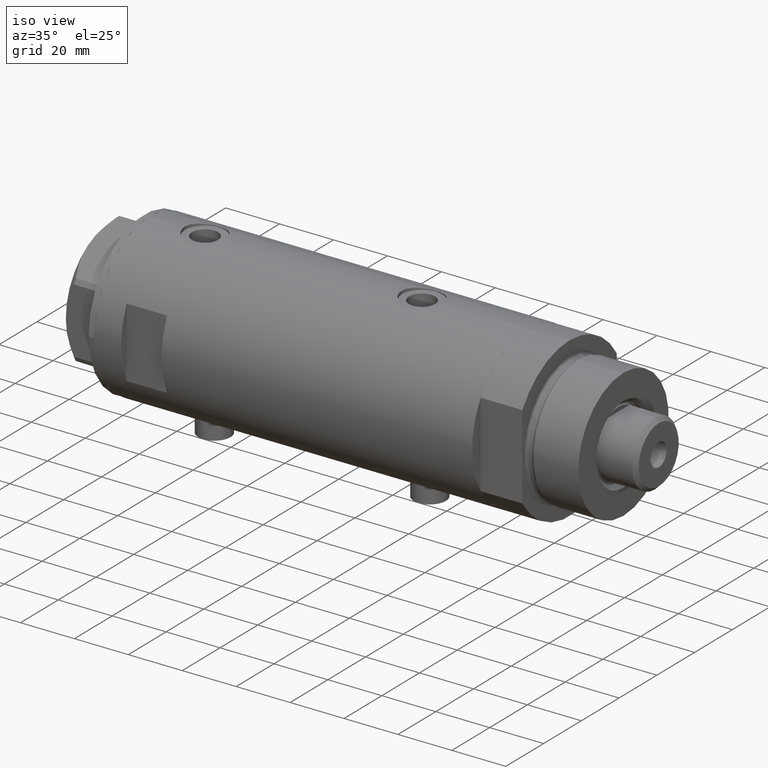
[diagram: clean part render]
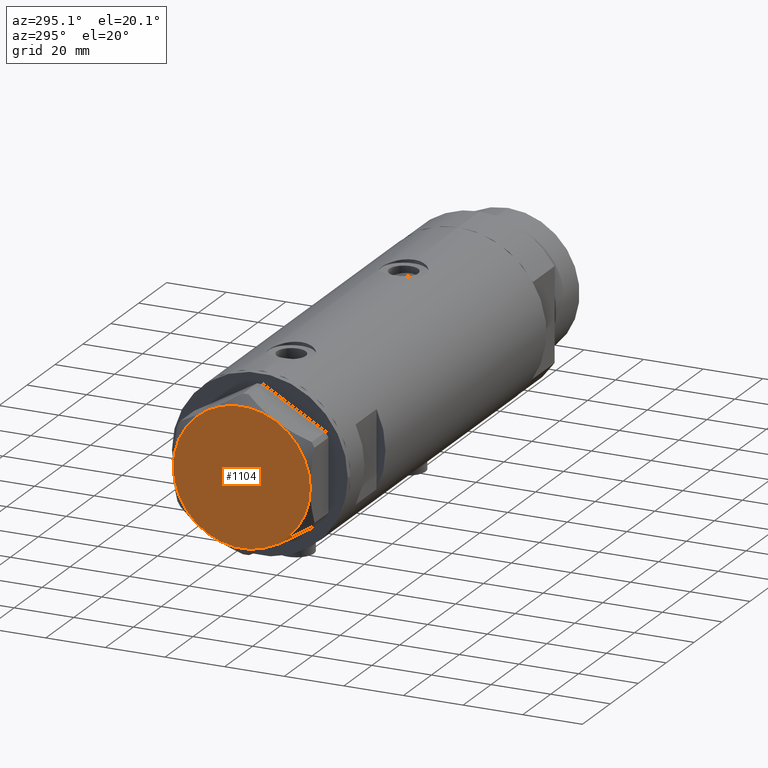
[diagram: tour spotlight — one face highlighted and labeled with its STEP entity id]
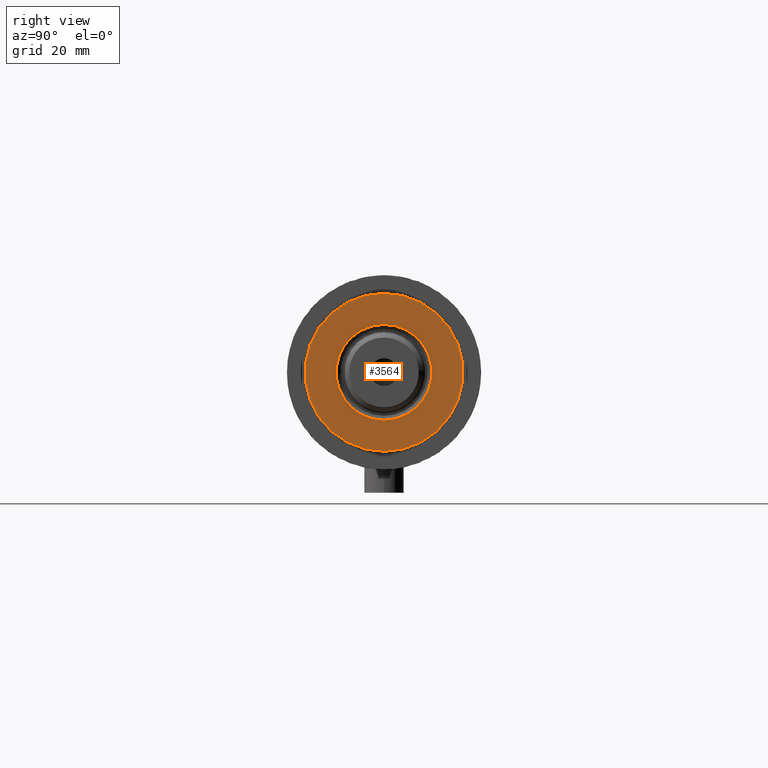
[diagram: tour spotlight — one face highlighted and labeled with its STEP entity id]
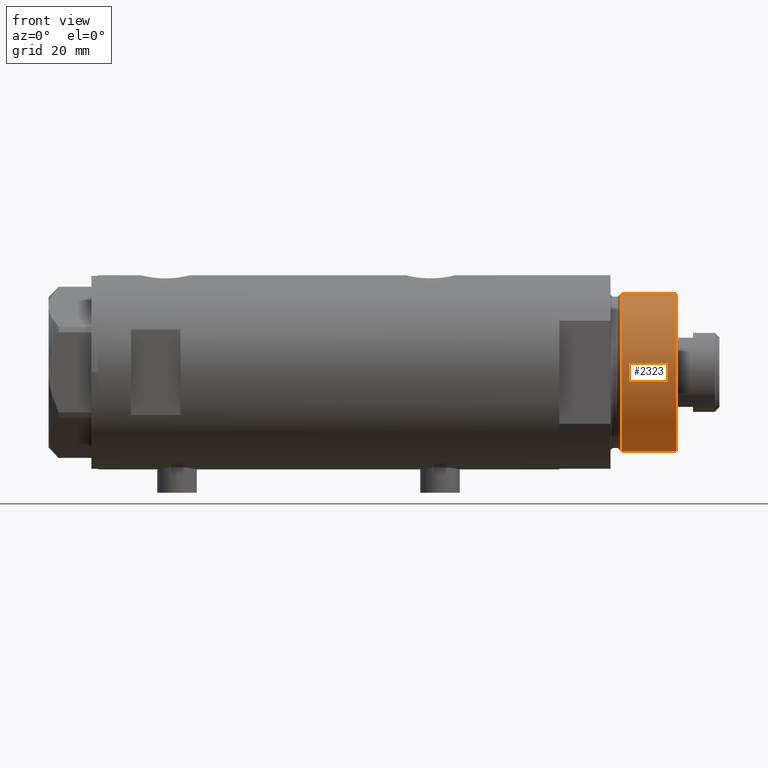
[diagram: tour spotlight — one face highlighted and labeled with its STEP entity id]
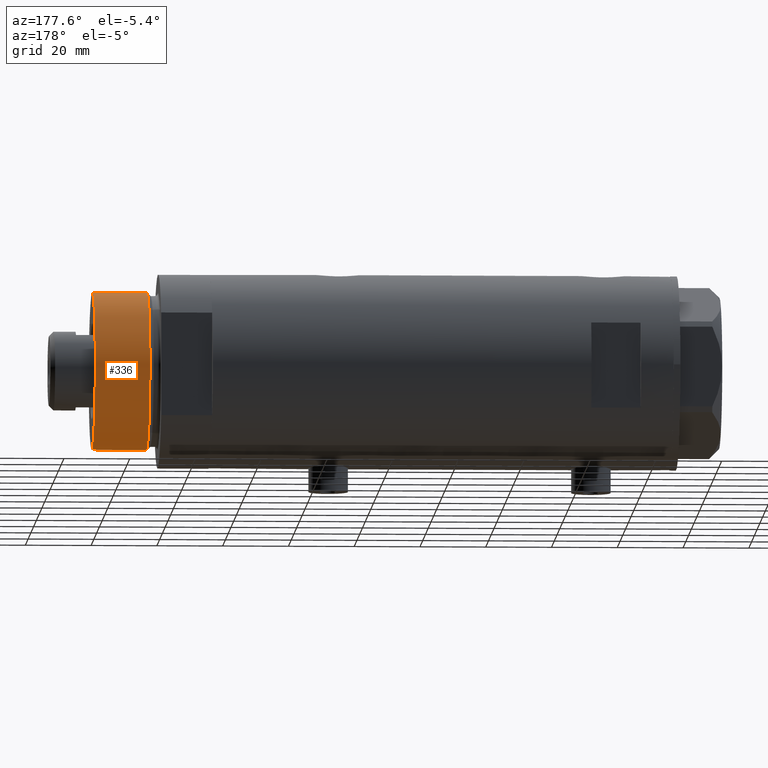
[diagram: tour spotlight — one face highlighted and labeled with its STEP entity id]
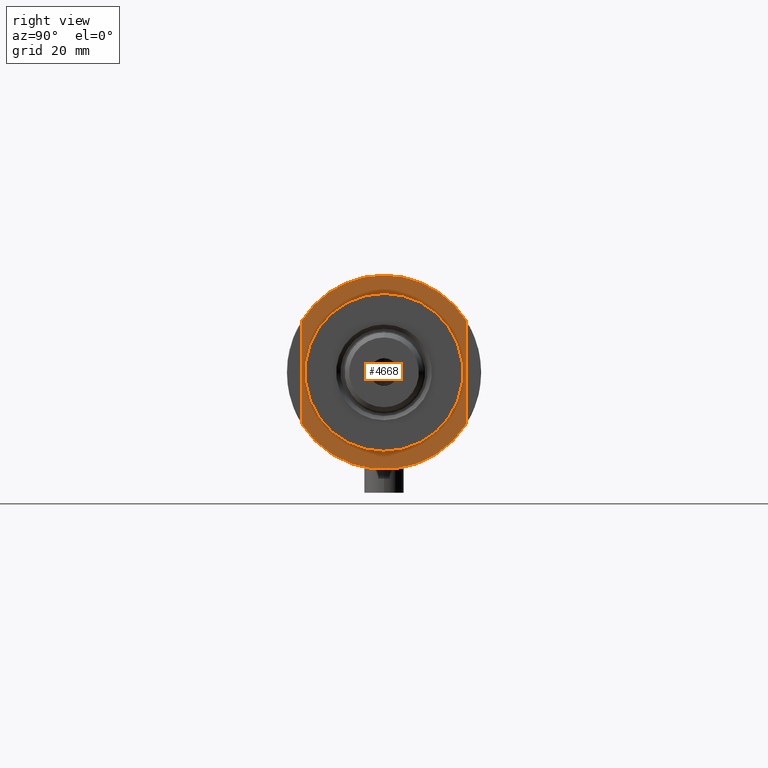
[diagram: tour spotlight — one face highlighted and labeled with its STEP entity id]
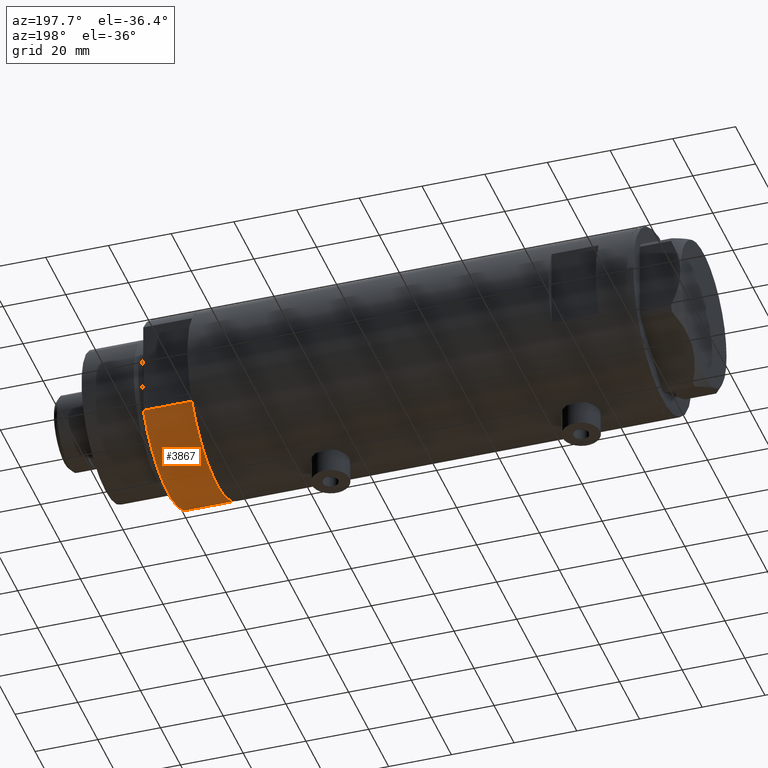
[diagram: tour spotlight — one face highlighted and labeled with its STEP entity id]
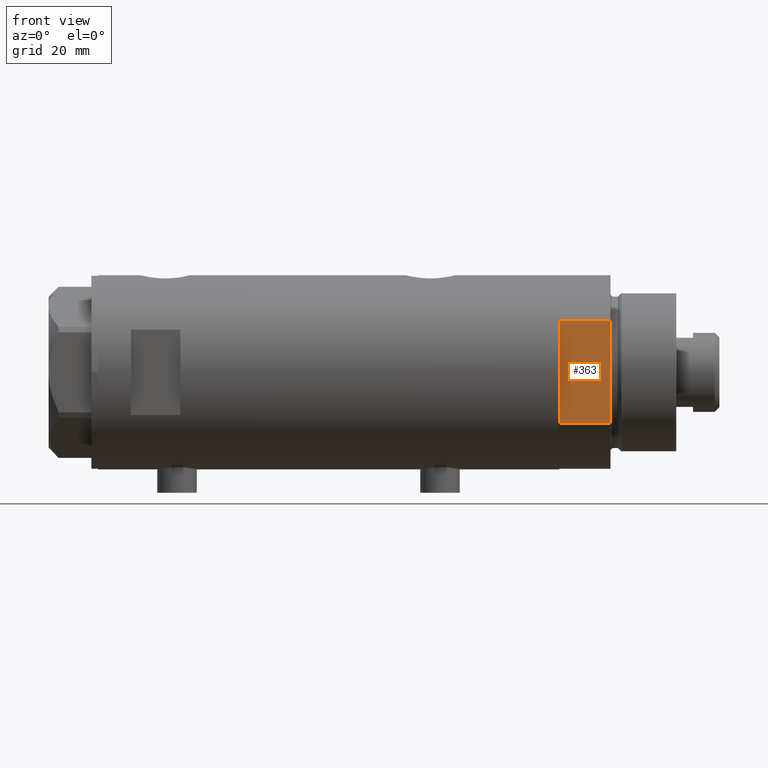
[diagram: tour spotlight — one face highlighted and labeled with its STEP entity id]
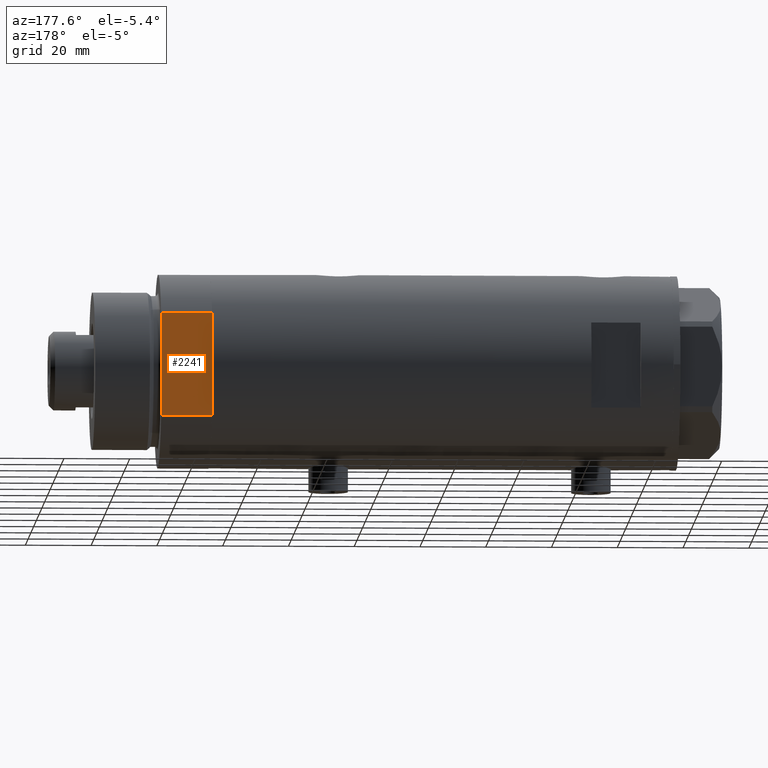
[diagram: tour spotlight — one face highlighted and labeled with its STEP entity id]
A machine part: a face-by-face anatomy tour. The part has 126 B-rep faces; the first image is the clean iso view, then the 8 largest visible faces are spotlighted one at a time (largest first), each with its STEP entity span.

Face 1 — auxiliary view, entity #1104. In plain terms, the highlighted planar face has unit normal (-1, -0, 0).
Definition (entity closure, byte-faithful):
#149 = DIRECTION ( 'NONE',  ( 1.000000000000000000, 0.000000000000000000, 0.000000000000000000 ) ) ;
#168 = CARTESIAN_POINT ( 'NONE',  ( -23.00000000000004619, -8.112498833180673323E-14, 13.00000000000000000 ) ) ;
#274 = AXIS2_PLACEMENT_3D ( 'NONE', #1689, #3508, #2084 ) ;
#452 = EDGE_LOOP ( 'NONE', ( #2864, #4184, #1001, #4405, #4159, #968 ) ) ;
#621 = CARTESIAN_POINT ( 'NONE',  ( -11.50000000000004441, 19.91858428704211548, 13.00000000000000000 ) ) ;
#648 = CARTESIAN_POINT ( 'NONE',  ( 0.000000000000000000, 0.000000000000000000, 13.00000000000000000 ) ) ;
#650 = AXIS2_PLACEMENT_3D ( 'NONE', #3964, #3939, #1782 ) ;
#659 = AXIS2_PLACEMENT_3D ( 'NONE', #3839, #3937, #2103 ) ;
#968 = ORIENTED_EDGE ( 'NONE', *, *, #3416, .T. ) ;
#996 = EDGE_CURVE ( 'NONE', #4281, #1590, #3108, .T. ) ;
#1001 = ORIENTED_EDGE ( 'NONE', *, *, #4637, .T. ) ;
#1104 = ADVANCED_FACE ( 'NONE', ( #1424 ), #4443, .T. ) ;
#1177 = CARTESIAN_POINT ( 'NONE',  ( -11.49999999999990585, -19.91858428704219364, 13.00000000000000000 ) ) ;
#1295 = CARTESIAN_POINT ( 'NONE',  ( 22.99999999999995026, 2.373657066004705010E-13, 13.00000000000000000 ) ) ;
#1327 = CIRCLE ( 'NONE', #2720, 23.00000000000004619 ) ;
#1354 = VERTEX_POINT ( 'NONE', #1295 ) ;
#1424 = FACE_OUTER_BOUND ( 'NONE', #452, .T. ) ;
#1590 = VERTEX_POINT ( 'NONE', #168 ) ;
#1666 = CARTESIAN_POINT ( 'NONE',  ( 0.000000000000000000, 0.000000000000000000, 13.00000000000000000 ) ) ;
#1689 = CARTESIAN_POINT ( 'NONE',  ( 0.000000000000000000, 0.000000000000000000, 13.00000000000000000 ) ) ;
#1782 = DIRECTION ( 'NONE',  ( 1.000000000000000000, 0.000000000000000000, 0.000000000000000000 ) ) ;
#2006 = EDGE_CURVE ( 'NONE', #1354, #4049, #4571, .T. ) ;
#2084 = DIRECTION ( 'NONE',  ( 1.000000000000000000, 0.000000000000000000, 0.000000000000000000 ) ) ;
#2103 = DIRECTION ( 'NONE',  ( 1.000000000000000000, 0.000000000000000000, 0.000000000000000000 ) ) ;
#2186 = DIRECTION ( 'NONE',  ( 1.000000000000000000, 0.000000000000000000, -0.000000000000000000 ) ) ;
#2259 = EDGE_CURVE ( 'NONE', #1590, #3776, #1327, .T. ) ;
#2613 = DIRECTION ( 'NONE',  ( 0.000000000000000000, 0.000000000000000000, 1.000000000000000000 ) ) ;
#2720 = AXIS2_PLACEMENT_3D ( 'NONE', #1666, #4137, #2820 ) ;
#2820 = DIRECTION ( 'NONE',  ( 1.000000000000000000, 0.000000000000000000, 0.000000000000000000 ) ) ;
#2864 = ORIENTED_EDGE ( 'NONE', *, *, #4280, .T. ) ;
#2892 = CARTESIAN_POINT ( 'NONE',  ( 0.000000000000000000, 0.000000000000000000, 13.00000000000000000 ) ) ;
#2915 = CIRCLE ( 'NONE', #659, 23.00000000000004619 ) ;
#3108 = CIRCLE ( 'NONE', #3796, 23.00000000000004619 ) ;
#3233 = DIRECTION ( 'NONE',  ( 0.000000000000000000, 0.000000000000000000, 1.000000000000000000 ) ) ;
#3304 = CIRCLE ( 'NONE', #274, 23.00000000000004619 ) ;
#3414 = AXIS2_PLACEMENT_3D ( 'NONE', #2892, #2613, #2186 ) ;
#3416 = EDGE_CURVE ( 'NONE', #3776, #3501, #4126, .T. ) ;
#3501 = VERTEX_POINT ( 'NONE', #3581 ) ;
#3508 = DIRECTION ( 'NONE',  ( 0.000000000000000000, 0.000000000000000000, 1.000000000000000000 ) ) ;
#3581 = CARTESIAN_POINT ( 'NONE',  ( 11.50000000000018296, -19.91858428704203732, 13.00000000000000000 ) ) ;
#3776 = VERTEX_POINT ( 'NONE', #1177 ) ;
#3796 = AXIS2_PLACEMENT_3D ( 'NONE', #648, #3233, #4672 ) ;
#3839 = CARTESIAN_POINT ( 'NONE',  ( 0.000000000000000000, 0.000000000000000000, 13.00000000000000000 ) ) ;
#3879 = AXIS2_PLACEMENT_3D ( 'NONE', #4580, #4194, #149 ) ;
#3937 = DIRECTION ( 'NONE',  ( 0.000000000000000000, 0.000000000000000000, 1.000000000000000000 ) ) ;
#3939 = DIRECTION ( 'NONE',  ( 0.000000000000000000, 0.000000000000000000, 1.000000000000000000 ) ) ;
#3964 = CARTESIAN_POINT ( 'NONE',  ( 0.000000000000000000, 0.000000000000000000, 13.00000000000000000 ) ) ;
#4049 = VERTEX_POINT ( 'NONE', #4566 ) ;
#4126 = CIRCLE ( 'NONE', #650, 23.00000000000004619 ) ;
#4137 = DIRECTION ( 'NONE',  ( 0.000000000000000000, 0.000000000000000000, 1.000000000000000000 ) ) ;
#4159 = ORIENTED_EDGE ( 'NONE', *, *, #2259, .T. ) ;
#4184 = ORIENTED_EDGE ( 'NONE', *, *, #2006, .T. ) ;
#4194 = DIRECTION ( 'NONE',  ( 0.000000000000000000, 0.000000000000000000, 1.000000000000000000 ) ) ;
#4280 = EDGE_CURVE ( 'NONE', #3501, #1354, #3304, .T. ) ;
#4281 = VERTEX_POINT ( 'NONE', #621 ) ;
#4405 = ORIENTED_EDGE ( 'NONE', *, *, #996, .T. ) ;
#4443 = PLANE ( 'NONE',  #3414 ) ;
#4566 = CARTESIAN_POINT ( 'NONE',  ( 11.49999999999990408, 19.91858428704219364, 13.00000000000000000 ) ) ;
#4571 = CIRCLE ( 'NONE', #3879, 23.00000000000004619 ) ;
#4580 = CARTESIAN_POINT ( 'NONE',  ( 0.000000000000000000, 0.000000000000000000, 13.00000000000000000 ) ) ;
#4637 = EDGE_CURVE ( 'NONE', #4049, #4281, #2915, .T. ) ;
#4672 = DIRECTION ( 'NONE',  ( 1.000000000000000000, 0.000000000000000000, 0.000000000000000000 ) ) ;

Face 2 — right view, entity #3564. In plain terms, the highlighted planar face has unit normal (1, 0, -0).
Definition (entity closure, byte-faithful):
#157 = EDGE_CURVE ( 'NONE', #2416, #3093, #2091, .T. ) ;
#166 = CARTESIAN_POINT ( 'NONE',  ( 0.000000000000000000, 0.000000000000000000, 35.50000000000000711 ) ) ;
#276 = PLANE ( 'NONE',  #4513 ) ;
#398 = DIRECTION ( 'NONE',  ( 1.000000000000000000, 0.000000000000000000, 0.000000000000000000 ) ) ;
#446 = CARTESIAN_POINT ( 'NONE',  ( 0.000000000000000000, 0.000000000000000000, 35.50000000000000711 ) ) ;
#683 = CARTESIAN_POINT ( 'NONE',  ( -14.54999999999999361, 1.781861092759398299E-15, 35.50000000000000711 ) ) ;
#796 = CARTESIAN_POINT ( 'NONE',  ( 24.00000000000000355, 2.939152317953648289E-15, 35.50000000000000711 ) ) ;
#831 = DIRECTION ( 'NONE',  ( -0.000000000000000000, -0.000000000000000000, -1.000000000000000000 ) ) ;
#879 = AXIS2_PLACEMENT_3D ( 'NONE', #2930, #1418, #3651 ) ;
#1060 = CARTESIAN_POINT ( 'NONE',  ( 14.54999999999999361, 0.000000000000000000, 35.50000000000000711 ) ) ;
#1389 = CARTESIAN_POINT ( 'NONE',  ( 0.000000000000000000, 0.000000000000000000, 35.50000000000000711 ) ) ;
#1416 = DIRECTION ( 'NONE',  ( 1.000000000000000000, 0.000000000000000000, -0.000000000000000000 ) ) ;
#1418 = DIRECTION ( 'NONE',  ( 0.000000000000000000, 0.000000000000000000, 1.000000000000000000 ) ) ;
#1421 = ORIENTED_EDGE ( 'NONE', *, *, #157, .T. ) ;
#1743 = AXIS2_PLACEMENT_3D ( 'NONE', #2448, #3207, #2424 ) ;
#1763 = ORIENTED_EDGE ( 'NONE', *, *, #2496, .T. ) ;
#2091 = CIRCLE ( 'NONE', #2946, 14.54999999999999361 ) ;
#2161 = AXIS2_PLACEMENT_3D ( 'NONE', #446, #831, #398 ) ;
#2416 = VERTEX_POINT ( 'NONE', #1060 ) ;
#2424 = DIRECTION ( 'NONE',  ( 1.000000000000000000, 0.000000000000000000, 0.000000000000000000 ) ) ;
#2429 = DIRECTION ( 'NONE',  ( -0.000000000000000000, -0.000000000000000000, -1.000000000000000000 ) ) ;
#2448 = CARTESIAN_POINT ( 'NONE',  ( 0.000000000000000000, 0.000000000000000000, 35.50000000000000711 ) ) ;
#2496 = EDGE_CURVE ( 'NONE', #3093, #2416, #2936, .T. ) ;
#2540 = FACE_BOUND ( 'NONE', #3015, .T. ) ;
#2832 = CARTESIAN_POINT ( 'NONE',  ( -24.00000000000000355, 0.000000000000000000, 35.50000000000000711 ) ) ;
#2857 = FACE_OUTER_BOUND ( 'NONE', #4207, .T. ) ;
#2924 = ORIENTED_EDGE ( 'NONE', *, *, #4185, .T. ) ;
#2930 = CARTESIAN_POINT ( 'NONE',  ( 0.000000000000000000, 0.000000000000000000, 35.50000000000000711 ) ) ;
#2936 = CIRCLE ( 'NONE', #2161, 14.54999999999999361 ) ;
#2946 = AXIS2_PLACEMENT_3D ( 'NONE', #166, #2429, #3490 ) ;
#2948 = DIRECTION ( 'NONE',  ( 0.000000000000000000, 0.000000000000000000, 1.000000000000000000 ) ) ;
#2985 = CIRCLE ( 'NONE', #879, 24.00000000000000355 ) ;
#2989 = CIRCLE ( 'NONE', #1743, 24.00000000000000355 ) ;
#3015 = EDGE_LOOP ( 'NONE', ( #1421, #1763 ) ) ;
#3061 = ORIENTED_EDGE ( 'NONE', *, *, #3483, .T. ) ;
#3093 = VERTEX_POINT ( 'NONE', #683 ) ;
#3207 = DIRECTION ( 'NONE',  ( 0.000000000000000000, 0.000000000000000000, 1.000000000000000000 ) ) ;
#3291 = VERTEX_POINT ( 'NONE', #796 ) ;
#3483 = EDGE_CURVE ( 'NONE', #3291, #4542, #2985, .T. ) ;
#3490 = DIRECTION ( 'NONE',  ( 1.000000000000000000, 0.000000000000000000, 0.000000000000000000 ) ) ;
#3564 = ADVANCED_FACE ( 'NONE', ( #2540, #2857 ), #276, .T. ) ;
#3651 = DIRECTION ( 'NONE',  ( 1.000000000000000000, 0.000000000000000000, 0.000000000000000000 ) ) ;
#4185 = EDGE_CURVE ( 'NONE', #4542, #3291, #2989, .T. ) ;
#4207 = EDGE_LOOP ( 'NONE', ( #2924, #3061 ) ) ;
#4513 = AXIS2_PLACEMENT_3D ( 'NONE', #1389, #2948, #1416 ) ;
#4542 = VERTEX_POINT ( 'NONE', #2832 ) ;

Face 3 — front view, entity #2323. In plain terms, the highlighted cylindrical surface (partial cylindrical patch) has radius 24 mm, axis along (-1, -0, 0).
Definition (entity closure, byte-faithful):
#409 = CARTESIAN_POINT ( 'NONE',  ( 0.000000000000000000, 0.000000000000000000, 18.87384048104054202 ) ) ;
#423 = CARTESIAN_POINT ( 'NONE',  ( 24.00000000000000355, 2.939152317953648289E-15, 18.87384048104054202 ) ) ;
#670 = EDGE_CURVE ( 'NONE', #3291, #2500, #3202, .T. ) ;
#753 = DIRECTION ( 'NONE',  ( -0.000000000000000000, -0.000000000000000000, 1.000000000000000000 ) ) ;
#773 = VERTEX_POINT ( 'NONE', #3381 ) ;
#796 = CARTESIAN_POINT ( 'NONE',  ( 24.00000000000000355, 2.939152317953648289E-15, 35.50000000000000711 ) ) ;
#828 = ORIENTED_EDGE ( 'NONE', *, *, #3252, .T. ) ;
#954 = DIRECTION ( 'NONE',  ( -0.000000000000000000, -0.000000000000000000, -1.000000000000000000 ) ) ;
#1034 = ORIENTED_EDGE ( 'NONE', *, *, #670, .F. ) ;
#1474 = DIRECTION ( 'NONE',  ( -1.000000000000000000, 0.000000000000000000, 0.000000000000000000 ) ) ;
#1743 = AXIS2_PLACEMENT_3D ( 'NONE', #2448, #3207, #2424 ) ;
#1918 = LINE ( 'NONE', #4118, #2760 ) ;
#2050 = EDGE_LOOP ( 'NONE', ( #1034, #4738, #2234, #828 ) ) ;
#2234 = ORIENTED_EDGE ( 'NONE', *, *, #4782, .T. ) ;
#2249 = VECTOR ( 'NONE', #954, 1000.000000000000000 ) ;
#2323 = ADVANCED_FACE ( 'NONE', ( #2570 ), #2960, .T. ) ;
#2424 = DIRECTION ( 'NONE',  ( 1.000000000000000000, 0.000000000000000000, 0.000000000000000000 ) ) ;
#2448 = CARTESIAN_POINT ( 'NONE',  ( 0.000000000000000000, 0.000000000000000000, 35.50000000000000711 ) ) ;
#2500 = VERTEX_POINT ( 'NONE', #423 ) ;
#2549 = DIRECTION ( 'NONE',  ( -0.000000000000000000, -0.000000000000000000, -1.000000000000000000 ) ) ;
#2570 = FACE_OUTER_BOUND ( 'NONE', #2050, .T. ) ;
#2760 = VECTOR ( 'NONE', #3043, 1000.000000000000000 ) ;
#2832 = CARTESIAN_POINT ( 'NONE',  ( -24.00000000000000355, 0.000000000000000000, 35.50000000000000711 ) ) ;
#2960 = CYLINDRICAL_SURFACE ( 'NONE', #4654, 24.00000000000000355 ) ;
#2989 = CIRCLE ( 'NONE', #1743, 24.00000000000000355 ) ;
#3043 = DIRECTION ( 'NONE',  ( -0.000000000000000000, -0.000000000000000000, -1.000000000000000000 ) ) ;
#3202 = LINE ( 'NONE', #4664, #2249 ) ;
#3207 = DIRECTION ( 'NONE',  ( 0.000000000000000000, 0.000000000000000000, 1.000000000000000000 ) ) ;
#3252 = EDGE_CURVE ( 'NONE', #773, #2500, #4437, .T. ) ;
#3291 = VERTEX_POINT ( 'NONE', #796 ) ;
#3381 = CARTESIAN_POINT ( 'NONE',  ( -24.00000000000000355, 0.000000000000000000, 18.87384048104054202 ) ) ;
#3677 = CARTESIAN_POINT ( 'NONE',  ( 0.000000000000000000, 0.000000000000000000, 35.50000000000000711 ) ) ;
#4118 = CARTESIAN_POINT ( 'NONE',  ( -24.00000000000000355, 0.000000000000000000, 35.50000000000000711 ) ) ;
#4140 = DIRECTION ( 'NONE',  ( 1.000000000000000000, 0.000000000000000000, 0.000000000000000000 ) ) ;
#4185 = EDGE_CURVE ( 'NONE', #4542, #3291, #2989, .T. ) ;
#4288 = AXIS2_PLACEMENT_3D ( 'NONE', #409, #753, #4140 ) ;
#4437 = CIRCLE ( 'NONE', #4288, 24.00000000000000355 ) ;
#4542 = VERTEX_POINT ( 'NONE', #2832 ) ;
#4654 = AXIS2_PLACEMENT_3D ( 'NONE', #3677, #2549, #1474 ) ;
#4664 = CARTESIAN_POINT ( 'NONE',  ( 24.00000000000000355, 2.939152317953648289E-15, 35.50000000000000711 ) ) ;
#4738 = ORIENTED_EDGE ( 'NONE', *, *, #4185, .F. ) ;
#4782 = EDGE_CURVE ( 'NONE', #4542, #773, #1918, .T. ) ;

Face 4 — auxiliary view, entity #336. In plain terms, the highlighted cylindrical surface (partial cylindrical patch) has radius 24 mm, axis along (-1, -0, 0).
Definition (entity closure, byte-faithful):
#336 = ADVANCED_FACE ( 'NONE', ( #1017 ), #2505, .T. ) ;
#381 = CIRCLE ( 'NONE', #4406, 24.00000000000000355 ) ;
#423 = CARTESIAN_POINT ( 'NONE',  ( 24.00000000000000355, 2.939152317953648289E-15, 18.87384048104054202 ) ) ;
#649 = DIRECTION ( 'NONE',  ( -0.000000000000000000, -0.000000000000000000, -1.000000000000000000 ) ) ;
#670 = EDGE_CURVE ( 'NONE', #3291, #2500, #3202, .T. ) ;
#682 = ORIENTED_EDGE ( 'NONE', *, *, #3483, .F. ) ;
#758 = EDGE_CURVE ( 'NONE', #2500, #773, #381, .T. ) ;
#773 = VERTEX_POINT ( 'NONE', #3381 ) ;
#796 = CARTESIAN_POINT ( 'NONE',  ( 24.00000000000000355, 2.939152317953648289E-15, 35.50000000000000711 ) ) ;
#879 = AXIS2_PLACEMENT_3D ( 'NONE', #2930, #1418, #3651 ) ;
#954 = DIRECTION ( 'NONE',  ( -0.000000000000000000, -0.000000000000000000, -1.000000000000000000 ) ) ;
#1017 = FACE_OUTER_BOUND ( 'NONE', #1066, .T. ) ;
#1066 = EDGE_LOOP ( 'NONE', ( #682, #2818, #1841, #2007 ) ) ;
#1227 = DIRECTION ( 'NONE',  ( 1.000000000000000000, 0.000000000000000000, 0.000000000000000000 ) ) ;
#1418 = DIRECTION ( 'NONE',  ( 0.000000000000000000, 0.000000000000000000, 1.000000000000000000 ) ) ;
#1530 = DIRECTION ( 'NONE',  ( -0.000000000000000000, -0.000000000000000000, 1.000000000000000000 ) ) ;
#1579 = CARTESIAN_POINT ( 'NONE',  ( 0.000000000000000000, 0.000000000000000000, 18.87384048104054202 ) ) ;
#1841 = ORIENTED_EDGE ( 'NONE', *, *, #758, .T. ) ;
#1918 = LINE ( 'NONE', #4118, #2760 ) ;
#2007 = ORIENTED_EDGE ( 'NONE', *, *, #4782, .F. ) ;
#2140 = DIRECTION ( 'NONE',  ( -1.000000000000000000, 0.000000000000000000, 0.000000000000000000 ) ) ;
#2249 = VECTOR ( 'NONE', #954, 1000.000000000000000 ) ;
#2500 = VERTEX_POINT ( 'NONE', #423 ) ;
#2505 = CYLINDRICAL_SURFACE ( 'NONE', #4722, 24.00000000000000355 ) ;
#2760 = VECTOR ( 'NONE', #3043, 1000.000000000000000 ) ;
#2818 = ORIENTED_EDGE ( 'NONE', *, *, #670, .T. ) ;
#2832 = CARTESIAN_POINT ( 'NONE',  ( -24.00000000000000355, 0.000000000000000000, 35.50000000000000711 ) ) ;
#2916 = CARTESIAN_POINT ( 'NONE',  ( 0.000000000000000000, 0.000000000000000000, 35.50000000000000711 ) ) ;
#2930 = CARTESIAN_POINT ( 'NONE',  ( 0.000000000000000000, 0.000000000000000000, 35.50000000000000711 ) ) ;
#2985 = CIRCLE ( 'NONE', #879, 24.00000000000000355 ) ;
#3043 = DIRECTION ( 'NONE',  ( -0.000000000000000000, -0.000000000000000000, -1.000000000000000000 ) ) ;
#3202 = LINE ( 'NONE', #4664, #2249 ) ;
#3291 = VERTEX_POINT ( 'NONE', #796 ) ;
#3381 = CARTESIAN_POINT ( 'NONE',  ( -24.00000000000000355, 0.000000000000000000, 18.87384048104054202 ) ) ;
#3483 = EDGE_CURVE ( 'NONE', #3291, #4542, #2985, .T. ) ;
#3651 = DIRECTION ( 'NONE',  ( 1.000000000000000000, 0.000000000000000000, 0.000000000000000000 ) ) ;
#4118 = CARTESIAN_POINT ( 'NONE',  ( -24.00000000000000355, 0.000000000000000000, 35.50000000000000711 ) ) ;
#4406 = AXIS2_PLACEMENT_3D ( 'NONE', #1579, #1530, #1227 ) ;
#4542 = VERTEX_POINT ( 'NONE', #2832 ) ;
#4664 = CARTESIAN_POINT ( 'NONE',  ( 24.00000000000000355, 2.939152317953648289E-15, 35.50000000000000711 ) ) ;
#4722 = AXIS2_PLACEMENT_3D ( 'NONE', #2916, #649, #2140 ) ;
#4782 = EDGE_CURVE ( 'NONE', #4542, #773, #1918, .T. ) ;

Face 5 — right view, entity #4668. In plain terms, the highlighted planar face has unit normal (1, 0, -0).
Definition (entity closure, byte-faithful):
#8 = AXIS2_PLACEMENT_3D ( 'NONE', #2178, #2201, #3653 ) ;
#19 = EDGE_CURVE ( 'NONE', #300, #2895, #1695, .T. ) ;
#125 = CARTESIAN_POINT ( 'NONE',  ( 0.000000000000000000, 0.000000000000000000, 15.50000000000000000 ) ) ;
#127 = CARTESIAN_POINT ( 'NONE',  ( -29.50000000000000355, 0.000000000000000000, 15.50000000000000000 ) ) ;
#133 = CARTESIAN_POINT ( 'NONE',  ( 15.66045976336583045, 25.00000000000000000, 15.50000000000000000 ) ) ;
#300 = VERTEX_POINT ( 'NONE', #4020 ) ;
#322 = AXIS2_PLACEMENT_3D ( 'NONE', #125, #3143, #3118 ) ;
#369 = FACE_BOUND ( 'NONE', #2379, .T. ) ;
#387 = EDGE_CURVE ( 'NONE', #2691, #2702, #2482, .T. ) ;
#467 = ORIENTED_EDGE ( 'NONE', *, *, #19, .T. ) ;
#523 = ORIENTED_EDGE ( 'NONE', *, *, #1957, .F. ) ;
#571 = DIRECTION ( 'NONE',  ( 1.000000000000000000, 0.000000000000000000, 0.000000000000000000 ) ) ;
#598 = CARTESIAN_POINT ( 'NONE',  ( 0.000000000000000000, 0.000000000000000000, 15.50000000000000000 ) ) ;
#713 = CARTESIAN_POINT ( 'NONE',  ( 24.00000000000000000, 0.000000000000000000, 15.50000000000000000 ) ) ;
#906 = EDGE_CURVE ( 'NONE', #300, #1242, #2138, .T. ) ;
#907 = DIRECTION ( 'NONE',  ( -0.000000000000000000, -0.000000000000000000, -1.000000000000000000 ) ) ;
#1052 = PLANE ( 'NONE',  #3371 ) ;
#1242 = VERTEX_POINT ( 'NONE', #133 ) ;
#1404 = VECTOR ( 'NONE', #3092, 1000.000000000000000 ) ;
#1407 = ORIENTED_EDGE ( 'NONE', *, *, #4309, .T. ) ;
#1462 = EDGE_CURVE ( 'NONE', #2895, #3453, #2716, .T. ) ;
#1495 = CARTESIAN_POINT ( 'NONE',  ( 15.66045976336583045, -25.00000000000000000, 15.50000000000000000 ) ) ;
#1695 = CIRCLE ( 'NONE', #3640, 29.50000000000000355 ) ;
#1935 = CARTESIAN_POINT ( 'NONE',  ( 0.000000000000000000, 0.000000000000000000, 15.50000000000000000 ) ) ;
#1949 = ORIENTED_EDGE ( 'NONE', *, *, #1966, .T. ) ;
#1957 = EDGE_CURVE ( 'NONE', #2546, #3453, #3882, .T. ) ;
#1958 = DIRECTION ( 'NONE',  ( 1.000000000000000000, 0.000000000000000000, 0.000000000000000000 ) ) ;
#1966 = EDGE_CURVE ( 'NONE', #2702, #2691, #3280, .T. ) ;
#2138 = LINE ( 'NONE', #4234, #4645 ) ;
#2176 = CARTESIAN_POINT ( 'NONE',  ( -15.66045976336583045, -25.00000000000000000, 15.50000000000000000 ) ) ;
#2178 = CARTESIAN_POINT ( 'NONE',  ( 0.000000000000000000, 0.000000000000000000, 15.50000000000000000 ) ) ;
#2201 = DIRECTION ( 'NONE',  ( 0.000000000000000000, 0.000000000000000000, 1.000000000000000000 ) ) ;
#2379 = EDGE_LOOP ( 'NONE', ( #1949, #2754 ) ) ;
#2393 = DIRECTION ( 'NONE',  ( 1.000000000000000000, 0.000000000000000000, 0.000000000000000000 ) ) ;
#2401 = AXIS2_PLACEMENT_3D ( 'NONE', #2551, #907, #2393 ) ;
#2475 = DIRECTION ( 'NONE',  ( 0.000000000000000000, 0.000000000000000000, 1.000000000000000000 ) ) ;
#2482 = CIRCLE ( 'NONE', #2401, 24.00000000000000000 ) ;
#2543 = CARTESIAN_POINT ( 'NONE',  ( -24.00000000000000000, 2.939152317953647894E-15, 15.50000000000000000 ) ) ;
#2546 = VERTEX_POINT ( 'NONE', #1495 ) ;
#2551 = CARTESIAN_POINT ( 'NONE',  ( 0.000000000000000000, 0.000000000000000000, 15.50000000000000000 ) ) ;
#2680 = ORIENTED_EDGE ( 'NONE', *, *, #906, .F. ) ;
#2691 = VERTEX_POINT ( 'NONE', #2543 ) ;
#2702 = VERTEX_POINT ( 'NONE', #713 ) ;
#2716 = CIRCLE ( 'NONE', #8, 29.50000000000000355 ) ;
#2754 = ORIENTED_EDGE ( 'NONE', *, *, #387, .T. ) ;
#2884 = FACE_OUTER_BOUND ( 'NONE', #3547, .T. ) ;
#2895 = VERTEX_POINT ( 'NONE', #127 ) ;
#2991 = AXIS2_PLACEMENT_3D ( 'NONE', #598, #2475, #571 ) ;
#3084 = DIRECTION ( 'NONE',  ( 0.000000000000000000, 0.000000000000000000, 1.000000000000000000 ) ) ;
#3092 = DIRECTION ( 'NONE',  ( -1.000000000000000000, -0.000000000000000000, -0.000000000000000000 ) ) ;
#3118 = DIRECTION ( 'NONE',  ( 1.000000000000000000, 0.000000000000000000, 0.000000000000000000 ) ) ;
#3143 = DIRECTION ( 'NONE',  ( -0.000000000000000000, -0.000000000000000000, -1.000000000000000000 ) ) ;
#3280 = CIRCLE ( 'NONE', #322, 24.00000000000000000 ) ;
#3371 = AXIS2_PLACEMENT_3D ( 'NONE', #4370, #4687, #4010 ) ;
#3453 = VERTEX_POINT ( 'NONE', #2176 ) ;
#3547 = EDGE_LOOP ( 'NONE', ( #523, #1407, #2680, #467, #3774 ) ) ;
#3588 = DIRECTION ( 'NONE',  ( 1.000000000000000000, 0.000000000000000000, 0.000000000000000000 ) ) ;
#3609 = CIRCLE ( 'NONE', #2991, 29.50000000000000355 ) ;
#3640 = AXIS2_PLACEMENT_3D ( 'NONE', #1935, #3084, #1958 ) ;
#3653 = DIRECTION ( 'NONE',  ( 1.000000000000000000, 0.000000000000000000, 0.000000000000000000 ) ) ;
#3774 = ORIENTED_EDGE ( 'NONE', *, *, #1462, .T. ) ;
#3882 = LINE ( 'NONE', #4531, #1404 ) ;
#4010 = DIRECTION ( 'NONE',  ( 1.000000000000000000, 0.000000000000000000, -0.000000000000000000 ) ) ;
#4020 = CARTESIAN_POINT ( 'NONE',  ( -15.66045976336583045, 25.00000000000000000, 15.50000000000000000 ) ) ;
#4234 = CARTESIAN_POINT ( 'NONE',  ( -15.66045976336583401, 25.00000000000000000, 15.50000000000000000 ) ) ;
#4309 = EDGE_CURVE ( 'NONE', #2546, #1242, #3609, .T. ) ;
#4370 = CARTESIAN_POINT ( 'NONE',  ( 0.000000000000000000, 0.000000000000000000, 15.50000000000000000 ) ) ;
#4531 = CARTESIAN_POINT ( 'NONE',  ( -15.66045976336583401, -25.00000000000000000, 15.50000000000000000 ) ) ;
#4645 = VECTOR ( 'NONE', #3588, 1000.000000000000000 ) ;
#4668 = ADVANCED_FACE ( 'NONE', ( #369, #2884 ), #1052, .T. ) ;
#4687 = DIRECTION ( 'NONE',  ( 0.000000000000000000, 0.000000000000000000, 1.000000000000000000 ) ) ;

Face 6 — auxiliary view, entity #3867. In plain terms, the highlighted cylindrical surface (partial cylindrical patch) has radius 29.5 mm, axis along (-1, -0, 0).
Definition (entity closure, byte-faithful):
#133 = CARTESIAN_POINT ( 'NONE',  ( 15.66045976336583045, 25.00000000000000000, 15.50000000000000000 ) ) ;
#160 = LINE ( 'NONE', #546, #2367 ) ;
#302 = DIRECTION ( 'NONE',  ( 1.000000000000000000, 0.000000000000000000, 0.000000000000000000 ) ) ;
#417 = AXIS2_PLACEMENT_3D ( 'NONE', #2562, #3986, #302 ) ;
#459 = LINE ( 'NONE', #1093, #2048 ) ;
#528 = CARTESIAN_POINT ( 'NONE',  ( 0.000000000000000000, 0.000000000000000000, 15.50000000000000000 ) ) ;
#546 = CARTESIAN_POINT ( 'NONE',  ( 15.66045976336583401, 25.00000000000000000, 0.000000000000000000 ) ) ;
#556 = DIRECTION ( 'NONE',  ( -0.000000000000000000, -0.000000000000000000, -1.000000000000000000 ) ) ;
#571 = DIRECTION ( 'NONE',  ( 1.000000000000000000, 0.000000000000000000, 0.000000000000000000 ) ) ;
#598 = CARTESIAN_POINT ( 'NONE',  ( 0.000000000000000000, 0.000000000000000000, 15.50000000000000000 ) ) ;
#665 = CARTESIAN_POINT ( 'NONE',  ( 15.66045976336583401, -25.00000000000000000, 0.000000000000000000 ) ) ;
#1093 = CARTESIAN_POINT ( 'NONE',  ( 15.66045976336583401, -25.00000000000000000, 0.000000000000000000 ) ) ;
#1242 = VERTEX_POINT ( 'NONE', #133 ) ;
#1495 = CARTESIAN_POINT ( 'NONE',  ( 15.66045976336583045, -25.00000000000000000, 15.50000000000000000 ) ) ;
#1565 = CARTESIAN_POINT ( 'NONE',  ( 15.66045976336582690, 25.00000000000000000, 0.000000000000000000 ) ) ;
#1643 = DIRECTION ( 'NONE',  ( -0.000000000000000000, -0.000000000000000000, 1.000000000000000000 ) ) ;
#2048 = VECTOR ( 'NONE', #4115, 1000.000000000000000 ) ;
#2367 = VECTOR ( 'NONE', #1643, 1000.000000000000000 ) ;
#2475 = DIRECTION ( 'NONE',  ( 0.000000000000000000, 0.000000000000000000, 1.000000000000000000 ) ) ;
#2546 = VERTEX_POINT ( 'NONE', #1495 ) ;
#2562 = CARTESIAN_POINT ( 'NONE',  ( 0.000000000000000000, 0.000000000000000000, 0.000000000000000000 ) ) ;
#2914 = AXIS2_PLACEMENT_3D ( 'NONE', #528, #556, #3066 ) ;
#2991 = AXIS2_PLACEMENT_3D ( 'NONE', #598, #2475, #571 ) ;
#3066 = DIRECTION ( 'NONE',  ( -1.000000000000000000, 0.000000000000000000, 0.000000000000000000 ) ) ;
#3096 = ORIENTED_EDGE ( 'NONE', *, *, #4309, .F. ) ;
#3255 = EDGE_CURVE ( 'NONE', #3516, #2546, #459, .T. ) ;
#3396 = EDGE_CURVE ( 'NONE', #3516, #4091, #3980, .T. ) ;
#3516 = VERTEX_POINT ( 'NONE', #665 ) ;
#3609 = CIRCLE ( 'NONE', #2991, 29.50000000000000355 ) ;
#3727 = ORIENTED_EDGE ( 'NONE', *, *, #4212, .T. ) ;
#3867 = ADVANCED_FACE ( 'NONE', ( #4164 ), #3901, .T. ) ;
#3901 = CYLINDRICAL_SURFACE ( 'NONE', #2914, 29.50000000000000355 ) ;
#3980 = CIRCLE ( 'NONE', #417, 29.50000000000000355 ) ;
#3986 = DIRECTION ( 'NONE',  ( 0.000000000000000000, 0.000000000000000000, 1.000000000000000000 ) ) ;
#4091 = VERTEX_POINT ( 'NONE', #1565 ) ;
#4115 = DIRECTION ( 'NONE',  ( -0.000000000000000000, -0.000000000000000000, 1.000000000000000000 ) ) ;
#4164 = FACE_OUTER_BOUND ( 'NONE', #4186, .T. ) ;
#4186 = EDGE_LOOP ( 'NONE', ( #3096, #4420, #4349, #3727 ) ) ;
#4212 = EDGE_CURVE ( 'NONE', #4091, #1242, #160, .T. ) ;
#4309 = EDGE_CURVE ( 'NONE', #2546, #1242, #3609, .T. ) ;
#4349 = ORIENTED_EDGE ( 'NONE', *, *, #3396, .T. ) ;
#4420 = ORIENTED_EDGE ( 'NONE', *, *, #3255, .F. ) ;

Face 7 — front view, entity #363. In plain terms, the highlighted planar face has unit normal (-0, 1, 0).
Definition (entity closure, byte-faithful):
#65 = CARTESIAN_POINT ( 'NONE',  ( -15.66045976336583401, -25.00000000000000000, 0.000000000000000000 ) ) ;
#136 = ORIENTED_EDGE ( 'NONE', *, *, #3579, .F. ) ;
#334 = DIRECTION ( 'NONE',  ( -0.000000000000000000, 1.000000000000000000, 0.000000000000000000 ) ) ;
#353 = VERTEX_POINT ( 'NONE', #3259 ) ;
#363 = ADVANCED_FACE ( 'NONE', ( #2573 ), #2529, .F. ) ;
#459 = LINE ( 'NONE', #1093, #2048 ) ;
#493 = VECTOR ( 'NONE', #1882, 1000.000000000000000 ) ;
#532 = AXIS2_PLACEMENT_3D ( 'NONE', #3998, #334, #2189 ) ;
#665 = CARTESIAN_POINT ( 'NONE',  ( 15.66045976336583401, -25.00000000000000000, 0.000000000000000000 ) ) ;
#684 = LINE ( 'NONE', #2125, #3898 ) ;
#914 = ORIENTED_EDGE ( 'NONE', *, *, #3105, .F. ) ;
#1093 = CARTESIAN_POINT ( 'NONE',  ( 15.66045976336583401, -25.00000000000000000, 0.000000000000000000 ) ) ;
#1404 = VECTOR ( 'NONE', #3092, 1000.000000000000000 ) ;
#1495 = CARTESIAN_POINT ( 'NONE',  ( 15.66045976336583045, -25.00000000000000000, 15.50000000000000000 ) ) ;
#1591 = CARTESIAN_POINT ( 'NONE',  ( -15.66045976336582690, -25.00000000000000000, 0.000000000000000000 ) ) ;
#1882 = DIRECTION ( 'NONE',  ( -0.000000000000000000, -0.000000000000000000, 1.000000000000000000 ) ) ;
#1905 = DIRECTION ( 'NONE',  ( -1.000000000000000000, -0.000000000000000000, -0.000000000000000000 ) ) ;
#1957 = EDGE_CURVE ( 'NONE', #2546, #3453, #3882, .T. ) ;
#1981 = CARTESIAN_POINT ( 'NONE',  ( -15.66045976336583401, -25.00000000000000000, 0.000000000000000000 ) ) ;
#2048 = VECTOR ( 'NONE', #4115, 1000.000000000000000 ) ;
#2125 = CARTESIAN_POINT ( 'NONE',  ( -15.66045976336583401, -25.00000000000000000, 0.000000000000000000 ) ) ;
#2176 = CARTESIAN_POINT ( 'NONE',  ( -15.66045976336583045, -25.00000000000000000, 15.50000000000000000 ) ) ;
#2189 = DIRECTION ( 'NONE',  ( 0.000000000000000000, -0.000000000000000000, 1.000000000000000000 ) ) ;
#2372 = LINE ( 'NONE', #1981, #493 ) ;
#2374 = VECTOR ( 'NONE', #4295, 1000.000000000000000 ) ;
#2465 = DIRECTION ( 'NONE',  ( -1.000000000000000000, -0.000000000000000000, -0.000000000000000000 ) ) ;
#2474 = VERTEX_POINT ( 'NONE', #4538 ) ;
#2529 = PLANE ( 'NONE',  #532 ) ;
#2546 = VERTEX_POINT ( 'NONE', #1495 ) ;
#2573 = FACE_OUTER_BOUND ( 'NONE', #2831, .T. ) ;
#2831 = EDGE_LOOP ( 'NONE', ( #4149, #3903, #914, #136, #4574, #4036 ) ) ;
#3092 = DIRECTION ( 'NONE',  ( -1.000000000000000000, -0.000000000000000000, -0.000000000000000000 ) ) ;
#3105 = EDGE_CURVE ( 'NONE', #353, #4124, #3960, .T. ) ;
#3255 = EDGE_CURVE ( 'NONE', #3516, #2546, #459, .T. ) ;
#3259 = CARTESIAN_POINT ( 'NONE',  ( -7.141428428542853091, -25.00000000000000000, 0.000000000000000000 ) ) ;
#3453 = VERTEX_POINT ( 'NONE', #2176 ) ;
#3516 = VERTEX_POINT ( 'NONE', #665 ) ;
#3579 = EDGE_CURVE ( 'NONE', #2474, #353, #684, .T. ) ;
#3748 = VECTOR ( 'NONE', #1905, 1000.000000000000000 ) ;
#3882 = LINE ( 'NONE', #4531, #1404 ) ;
#3898 = VECTOR ( 'NONE', #2465, 1000.000000000000000 ) ;
#3903 = ORIENTED_EDGE ( 'NONE', *, *, #4156, .F. ) ;
#3960 = LINE ( 'NONE', #4683, #2374 ) ;
#3998 = CARTESIAN_POINT ( 'NONE',  ( -15.66045976336583401, -25.00000000000000000, 0.000000000000000000 ) ) ;
#4036 = ORIENTED_EDGE ( 'NONE', *, *, #3255, .T. ) ;
#4043 = EDGE_CURVE ( 'NONE', #3516, #2474, #4493, .T. ) ;
#4115 = DIRECTION ( 'NONE',  ( -0.000000000000000000, -0.000000000000000000, 1.000000000000000000 ) ) ;
#4124 = VERTEX_POINT ( 'NONE', #1591 ) ;
#4149 = ORIENTED_EDGE ( 'NONE', *, *, #1957, .T. ) ;
#4156 = EDGE_CURVE ( 'NONE', #4124, #3453, #2372, .T. ) ;
#4295 = DIRECTION ( 'NONE',  ( -1.000000000000000000, -0.000000000000000000, -0.000000000000000000 ) ) ;
#4493 = LINE ( 'NONE', #65, #3748 ) ;
#4531 = CARTESIAN_POINT ( 'NONE',  ( -15.66045976336583401, -25.00000000000000000, 15.50000000000000000 ) ) ;
#4538 = CARTESIAN_POINT ( 'NONE',  ( 7.141428428542853091, -25.00000000000000000, 0.000000000000000000 ) ) ;
#4574 = ORIENTED_EDGE ( 'NONE', *, *, #4043, .F. ) ;
#4683 = CARTESIAN_POINT ( 'NONE',  ( -15.66045976336583401, -25.00000000000000000, 0.000000000000000000 ) ) ;

Face 8 — auxiliary view, entity #2241. In plain terms, the highlighted planar face has unit normal (0, -1, -0).
Definition (entity closure, byte-faithful):
#133 = CARTESIAN_POINT ( 'NONE',  ( 15.66045976336583045, 25.00000000000000000, 15.50000000000000000 ) ) ;
#160 = LINE ( 'NONE', #546, #2367 ) ;
#165 = AXIS2_PLACEMENT_3D ( 'NONE', #456, #1718, #4284 ) ;
#191 = VECTOR ( 'NONE', #4433, 1000.000000000000000 ) ;
#208 = DIRECTION ( 'NONE',  ( 1.000000000000000000, 0.000000000000000000, 0.000000000000000000 ) ) ;
#299 = DIRECTION ( 'NONE',  ( -0.000000000000000000, -0.000000000000000000, 1.000000000000000000 ) ) ;
#300 = VERTEX_POINT ( 'NONE', #4020 ) ;
#365 = ORIENTED_EDGE ( 'NONE', *, *, #3600, .T. ) ;
#456 = CARTESIAN_POINT ( 'NONE',  ( -15.66045976336583401, 25.00000000000000000, 0.000000000000000000 ) ) ;
#488 = EDGE_LOOP ( 'NONE', ( #3308, #748, #2191, #4319, #4449, #365 ) ) ;
#546 = CARTESIAN_POINT ( 'NONE',  ( 15.66045976336583401, 25.00000000000000000, 0.000000000000000000 ) ) ;
#605 = EDGE_CURVE ( 'NONE', #1655, #949, #4251, .T. ) ;
#710 = LINE ( 'NONE', #2151, #3298 ) ;
#748 = ORIENTED_EDGE ( 'NONE', *, *, #4212, .F. ) ;
#906 = EDGE_CURVE ( 'NONE', #300, #1242, #2138, .T. ) ;
#913 = CARTESIAN_POINT ( 'NONE',  ( -7.141428428542853091, 25.00000000000000000, 0.000000000000000000 ) ) ;
#939 = FACE_OUTER_BOUND ( 'NONE', #488, .T. ) ;
#949 = VERTEX_POINT ( 'NONE', #913 ) ;
#1172 = PLANE ( 'NONE',  #165 ) ;
#1242 = VERTEX_POINT ( 'NONE', #133 ) ;
#1487 = CARTESIAN_POINT ( 'NONE',  ( 7.141428428542853091, 25.00000000000000000, 0.000000000000000000 ) ) ;
#1565 = CARTESIAN_POINT ( 'NONE',  ( 15.66045976336582690, 25.00000000000000000, 0.000000000000000000 ) ) ;
#1643 = DIRECTION ( 'NONE',  ( -0.000000000000000000, -0.000000000000000000, 1.000000000000000000 ) ) ;
#1655 = VERTEX_POINT ( 'NONE', #4525 ) ;
#1718 = DIRECTION ( 'NONE',  ( 0.000000000000000000, -1.000000000000000000, 0.000000000000000000 ) ) ;
#1941 = LINE ( 'NONE', #2283, #191 ) ;
#2138 = LINE ( 'NONE', #4234, #4645 ) ;
#2151 = CARTESIAN_POINT ( 'NONE',  ( -15.66045976336583401, 25.00000000000000000, 0.000000000000000000 ) ) ;
#2191 = ORIENTED_EDGE ( 'NONE', *, *, #2328, .F. ) ;
#2229 = DIRECTION ( 'NONE',  ( 1.000000000000000000, 0.000000000000000000, 0.000000000000000000 ) ) ;
#2241 = ADVANCED_FACE ( 'NONE', ( #939 ), #1172, .F. ) ;
#2283 = CARTESIAN_POINT ( 'NONE',  ( -15.66045976336583401, 25.00000000000000000, 0.000000000000000000 ) ) ;
#2328 = EDGE_CURVE ( 'NONE', #4776, #4091, #2937, .T. ) ;
#2367 = VECTOR ( 'NONE', #1643, 1000.000000000000000 ) ;
#2937 = LINE ( 'NONE', #4746, #4038 ) ;
#2950 = VECTOR ( 'NONE', #208, 1000.000000000000000 ) ;
#3298 = VECTOR ( 'NONE', #299, 1000.000000000000000 ) ;
#3308 = ORIENTED_EDGE ( 'NONE', *, *, #906, .T. ) ;
#3588 = DIRECTION ( 'NONE',  ( 1.000000000000000000, 0.000000000000000000, 0.000000000000000000 ) ) ;
#3600 = EDGE_CURVE ( 'NONE', #1655, #300, #710, .T. ) ;
#3689 = EDGE_CURVE ( 'NONE', #949, #4776, #1941, .T. ) ;
#3938 = CARTESIAN_POINT ( 'NONE',  ( -15.66045976336583401, 25.00000000000000000, 0.000000000000000000 ) ) ;
#4020 = CARTESIAN_POINT ( 'NONE',  ( -15.66045976336583045, 25.00000000000000000, 15.50000000000000000 ) ) ;
#4038 = VECTOR ( 'NONE', #2229, 1000.000000000000000 ) ;
#4091 = VERTEX_POINT ( 'NONE', #1565 ) ;
#4212 = EDGE_CURVE ( 'NONE', #4091, #1242, #160, .T. ) ;
#4234 = CARTESIAN_POINT ( 'NONE',  ( -15.66045976336583401, 25.00000000000000000, 15.50000000000000000 ) ) ;
#4251 = LINE ( 'NONE', #3938, #2950 ) ;
#4284 = DIRECTION ( 'NONE',  ( 0.000000000000000000, -0.000000000000000000, -1.000000000000000000 ) ) ;
#4319 = ORIENTED_EDGE ( 'NONE', *, *, #3689, .F. ) ;
#4433 = DIRECTION ( 'NONE',  ( 1.000000000000000000, 0.000000000000000000, 0.000000000000000000 ) ) ;
#4449 = ORIENTED_EDGE ( 'NONE', *, *, #605, .F. ) ;
#4525 = CARTESIAN_POINT ( 'NONE',  ( -15.66045976336583401, 25.00000000000000000, 0.000000000000000000 ) ) ;
#4645 = VECTOR ( 'NONE', #3588, 1000.000000000000000 ) ;
#4746 = CARTESIAN_POINT ( 'NONE',  ( -15.66045976336583401, 25.00000000000000000, 0.000000000000000000 ) ) ;
#4776 = VERTEX_POINT ( 'NONE', #1487 ) ;